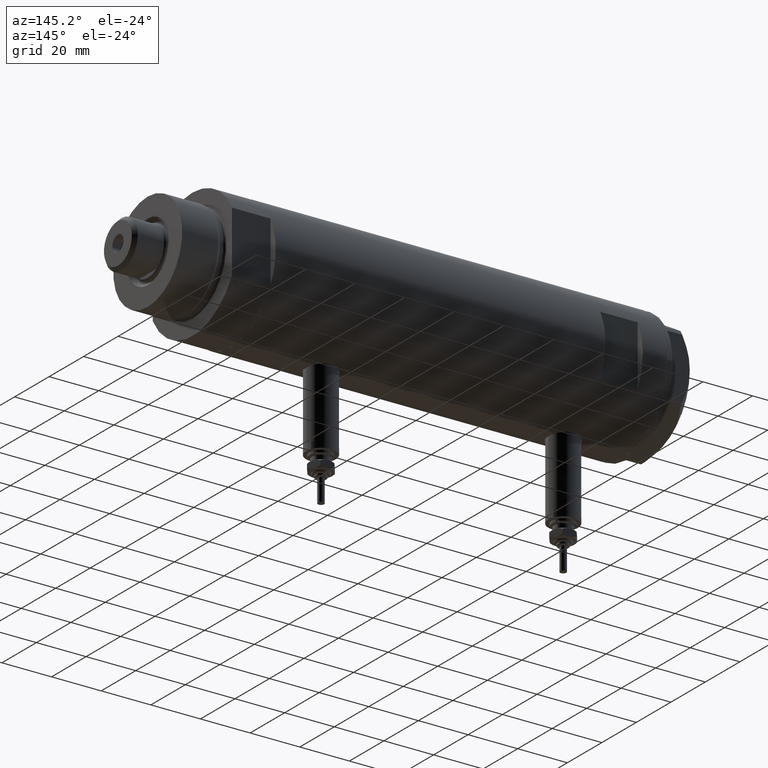
[diagram: clean part render]
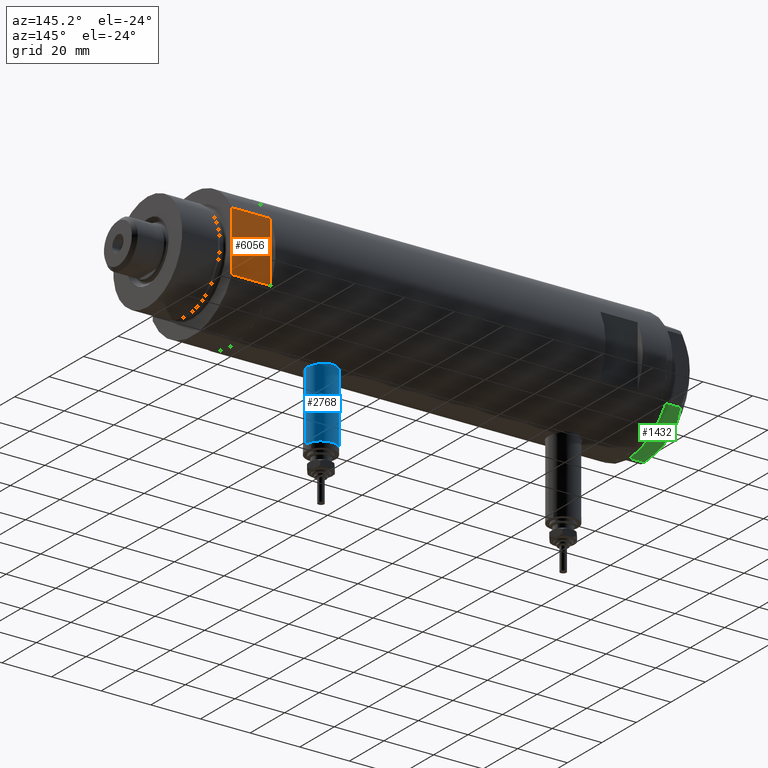
[diagram: same view with three faces highlighted in distinct colors, each labeled with its STEP entity id]
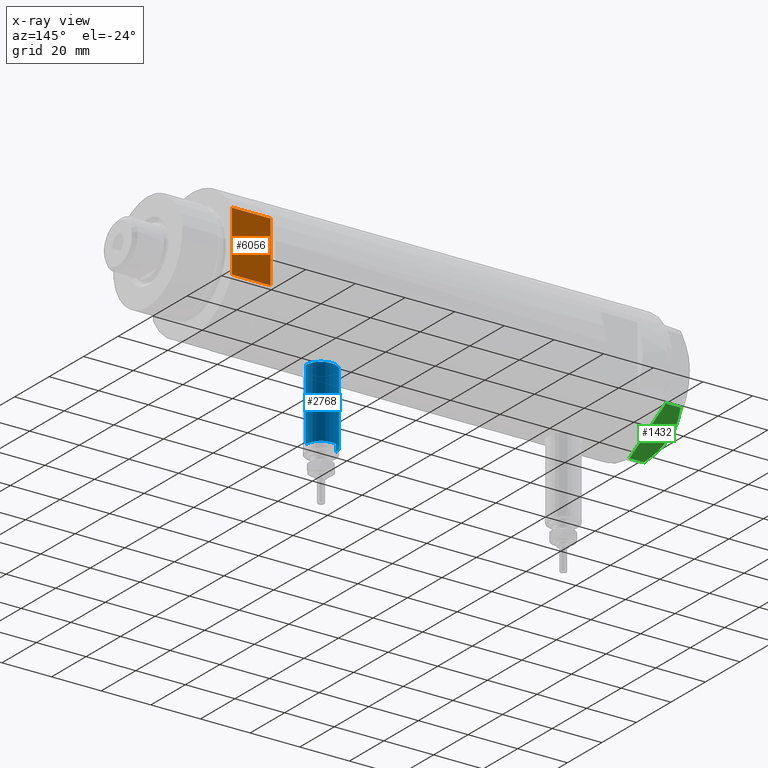
[diagram: x-ray of the same camera — body ghosted, the three highlighted faces saturated]
A machine part, auxiliary view with three faces highlighted in distinct colors.
The next image is the same camera in x-ray (body ghosted, the three faces saturated) — at least one of them is partly hidden behind the body in this view.
Their STEP definitions:

[orange] entity #6056 — the highlighted planar face has unit normal (0, -1, -0).
#189 = CARTESIAN_POINT ( 'NONE',  ( -12.12435565298215145, 23.00000000000000355, 15.50000000000000000 ) ) ;
#220 = DIRECTION ( 'NONE',  ( 1.000000000000000000, 0.000000000000000000, 0.000000000000000000 ) ) ;
#300 = EDGE_CURVE ( 'NONE', #2695, #940, #2361, .T. ) ;
#359 = ORIENTED_EDGE ( 'NONE', *, *, #1673, .T. ) ;
#790 = ORIENTED_EDGE ( 'NONE', *, *, #300, .F. ) ;
#940 = VERTEX_POINT ( 'NONE', #4628 ) ;
#971 = CARTESIAN_POINT ( 'NONE',  ( 12.12435565298215323, 23.00000000000000355, 0.000000000000000000 ) ) ;
#1000 = VERTEX_POINT ( 'NONE', #3163 ) ;
#1210 = CARTESIAN_POINT ( 'NONE',  ( 12.12435565298214080, 23.00000000000000355, 0.000000000000000000 ) ) ;
#1397 = VECTOR ( 'NONE', #5771, 1000.000000000000000 ) ;
#1417 = LINE ( 'NONE', #3372, #1397 ) ;
#1673 = EDGE_CURVE ( 'NONE', #3777, #940, #2648, .T. ) ;
#2184 = ORIENTED_EDGE ( 'NONE', *, *, #6288, .F. ) ;
#2203 = DIRECTION ( 'NONE',  ( 0.000000000000000000, -0.000000000000000000, -1.000000000000000000 ) ) ;
#2361 = LINE ( 'NONE', #971, #3501 ) ;
#2648 = LINE ( 'NONE', #189, #2899 ) ;
#2695 = VERTEX_POINT ( 'NONE', #1210 ) ;
#2860 = DIRECTION ( 'NONE',  ( -0.000000000000000000, -0.000000000000000000, 1.000000000000000000 ) ) ;
#2899 = VECTOR ( 'NONE', #220, 1000.000000000000000 ) ;
#3163 = CARTESIAN_POINT ( 'NONE',  ( -12.12435565298215145, 23.00000000000000355, 0.000000000000000000 ) ) ;
#3218 = FACE_OUTER_BOUND ( 'NONE', #3484, .T. ) ;
#3372 = CARTESIAN_POINT ( 'NONE',  ( -12.12435565298215145, 23.00000000000000355, 0.000000000000000000 ) ) ;
#3484 = EDGE_LOOP ( 'NONE', ( #359, #790, #2184, #5788 ) ) ;
#3501 = VECTOR ( 'NONE', #2860, 1000.000000000000000 ) ;
#3504 = CARTESIAN_POINT ( 'NONE',  ( -12.12435565298215145, 23.00000000000000355, 0.000000000000000000 ) ) ;
#3777 = VERTEX_POINT ( 'NONE', #5886 ) ;
#4290 = AXIS2_PLACEMENT_3D ( 'NONE', #5625, #4647, #2203 ) ;
#4577 = LINE ( 'NONE', #3504, #5808 ) ;
#4628 = CARTESIAN_POINT ( 'NONE',  ( 12.12435565298214790, 23.00000000000000355, 15.50000000000000000 ) ) ;
#4647 = DIRECTION ( 'NONE',  ( 0.000000000000000000, -1.000000000000000000, 0.000000000000000000 ) ) ;
#5028 = EDGE_CURVE ( 'NONE', #1000, #3777, #1417, .T. ) ;
#5625 = CARTESIAN_POINT ( 'NONE',  ( -12.12435565298215145, 23.00000000000000355, 0.000000000000000000 ) ) ;
#5771 = DIRECTION ( 'NONE',  ( -0.000000000000000000, -0.000000000000000000, 1.000000000000000000 ) ) ;
#5788 = ORIENTED_EDGE ( 'NONE', *, *, #5028, .T. ) ;
#5808 = VECTOR ( 'NONE', #5938, 1000.000000000000000 ) ;
#5886 = CARTESIAN_POINT ( 'NONE',  ( -12.12435565298214613, 23.00000000000000355, 15.50000000000000000 ) ) ;
#5938 = DIRECTION ( 'NONE',  ( 1.000000000000000000, 0.000000000000000000, 0.000000000000000000 ) ) ;
#6056 = ADVANCED_FACE ( 'NONE', ( #3218 ), #6165, .F. ) ;
#6165 = PLANE ( 'NONE',  #4290 ) ;
#6288 = EDGE_CURVE ( 'NONE', #1000, #2695, #4577, .T. ) ;

[blue] entity #2768 — the highlighted cylindrical surface (edge-blend (fillet) strip) has radius 6 mm, axis along (0, 0, 1).
#144 = CARTESIAN_POINT ( 'NONE',  ( -53.40000000000000568, 7.347880794884119736E-16, -36.64999999999999858 ) ) ;
#190 = ORIENTED_EDGE ( 'NONE', *, *, #4580, .F. ) ;
#282 = FACE_OUTER_BOUND ( 'NONE', #1907, .T. ) ;
#415 = LINE ( 'NONE', #2364, #5592 ) ;
#437 = VERTEX_POINT ( 'NONE', #2057 ) ;
#993 = VECTOR ( 'NONE', #2237, 1000.000000000000000 ) ;
#1212 = VERTEX_POINT ( 'NONE', #1768 ) ;
#1449 = DIRECTION ( 'NONE',  ( 1.000000000000000000, -0.000000000000000000, -0.000000000000000000 ) ) ;
#1576 = AXIS2_PLACEMENT_3D ( 'NONE', #4839, #1922, #2898 ) ;
#1768 = CARTESIAN_POINT ( 'NONE',  ( -24.80000000000000426, 7.347880794884119736E-16, -36.64999999999999858 ) ) ;
#1797 = EDGE_CURVE ( 'NONE', #6278, #5781, #2094, .T. ) ;
#1827 = CARTESIAN_POINT ( 'NONE',  ( -24.80000000000000426, 0.000000000000000000, -42.65000000000000568 ) ) ;
#1837 = EDGE_CURVE ( 'NONE', #1212, #437, #3521, .T. ) ;
#1907 = EDGE_LOOP ( 'NONE', ( #4855, #2100, #5239, #190 ) ) ;
#1922 = DIRECTION ( 'NONE',  ( -1.000000000000000000, 0.000000000000000000, 0.000000000000000000 ) ) ;
#2057 = CARTESIAN_POINT ( 'NONE',  ( -24.80000000000000426, 0.000000000000000000, -48.65000000000001279 ) ) ;
#2094 = CIRCLE ( 'NONE', #1576, 6.000000000000005329 ) ;
#2100 = ORIENTED_EDGE ( 'NONE', *, *, #6016, .T. ) ;
#2237 = DIRECTION ( 'NONE',  ( 1.000000000000000000, -0.000000000000000000, -0.000000000000000000 ) ) ;
#2301 = CARTESIAN_POINT ( 'NONE',  ( -53.40000000000000568, 7.347880794884122694E-16, -36.64999999999999858 ) ) ;
#2364 = CARTESIAN_POINT ( 'NONE',  ( -53.40000000000000568, 0.000000000000000000, -48.65000000000001279 ) ) ;
#2768 = ADVANCED_FACE ( 'NONE', ( #282 ), #5688, .T. ) ;
#2898 = DIRECTION ( 'NONE',  ( 0.000000000000000000, 0.000000000000000000, 1.000000000000000000 ) ) ;
#3007 = AXIS2_PLACEMENT_3D ( 'NONE', #3255, #5753, #3217 ) ;
#3185 = LINE ( 'NONE', #2301, #993 ) ;
#3217 = DIRECTION ( 'NONE',  ( 0.000000000000000000, 0.000000000000000000, -1.000000000000000000 ) ) ;
#3255 = CARTESIAN_POINT ( 'NONE',  ( -53.40000000000000568, 0.000000000000000000, -42.65000000000000568 ) ) ;
#3292 = DIRECTION ( 'NONE',  ( 0.000000000000000000, 0.000000000000000000, 1.000000000000000000 ) ) ;
#3521 = CIRCLE ( 'NONE', #5773, 6.000000000000005329 ) ;
#3786 = DIRECTION ( 'NONE',  ( -1.000000000000000000, 0.000000000000000000, 0.000000000000000000 ) ) ;
#4580 = EDGE_CURVE ( 'NONE', #5781, #437, #415, .T. ) ;
#4839 = CARTESIAN_POINT ( 'NONE',  ( -53.40000000000000568, 0.000000000000000000, -42.65000000000000568 ) ) ;
#4855 = ORIENTED_EDGE ( 'NONE', *, *, #1797, .F. ) ;
#5239 = ORIENTED_EDGE ( 'NONE', *, *, #1837, .T. ) ;
#5496 = CARTESIAN_POINT ( 'NONE',  ( -53.40000000000000568, 0.000000000000000000, -48.65000000000001279 ) ) ;
#5592 = VECTOR ( 'NONE', #1449, 1000.000000000000000 ) ;
#5688 = CYLINDRICAL_SURFACE ( 'NONE', #3007, 6.000000000000005329 ) ;
#5753 = DIRECTION ( 'NONE',  ( 1.000000000000000000, -0.000000000000000000, -0.000000000000000000 ) ) ;
#5773 = AXIS2_PLACEMENT_3D ( 'NONE', #1827, #3786, #3292 ) ;
#5781 = VERTEX_POINT ( 'NONE', #5496 ) ;
#6016 = EDGE_CURVE ( 'NONE', #6278, #1212, #3185, .T. ) ;
#6278 = VERTEX_POINT ( 'NONE', #144 ) ;

[green] entity #1432 — the highlighted planar face has unit normal (0, -0.5, 0.866).
#23 = EDGE_CURVE ( 'NONE', #3805, #6315, #4177, .T. ) ;
#39 = VECTOR ( 'NONE', #5797, 1000.000000000000000 ) ;
#89 = CARTESIAN_POINT ( 'NONE',  ( 20.37350567916420019, 14.79546339452108050, 6.877782426143415506 ) ) ;
#120 = DIRECTION ( 'NONE',  ( -0.8660254037844415942, 0.4999999999999949485, 0.000000000000000000 ) ) ;
#313 = ORIENTED_EDGE ( 'NONE', *, *, #23, .T. ) ;
#361 = CARTESIAN_POINT ( 'NONE',  ( 22.99999999999981171, 13.27905619136164184, 0.000000000000000000 ) ) ;
#562 = CARTESIAN_POINT ( 'NONE',  ( 0.9699484522385767304, 25.99811238272274849, 5.983800287807627960 ) ) ;
#622 = ORIENTED_EDGE ( 'NONE', *, *, #1511, .T. ) ;
#625 = CARTESIAN_POINT ( 'NONE',  ( 5.671686373602799591, 23.28356272816407824, 8.040681765829278405 ) ) ;
#949 = CARTESIAN_POINT ( 'NONE',  ( 15.16323225988329959, 17.80361615569442790, 8.637313967156861949 ) ) ;
#953 = CARTESIAN_POINT ( 'NONE',  ( 0.9699484522385816154, 25.99811238272274494, 9.000000000000000000 ) ) ;
#1022 = VERTEX_POINT ( 'NONE', #4182 ) ;
#1266 = LINE ( 'NONE', #2735, #1306 ) ;
#1306 = VECTOR ( 'NONE', #2165, 1000.000000000000000 ) ;
#1432 = ADVANCED_FACE ( 'NONE', ( #2817 ), #2403, .F. ) ;
#1511 = EDGE_CURVE ( 'NONE', #6315, #1022, #3855, .T. ) ;
#1525 = CARTESIAN_POINT ( 'NONE',  ( 16.05322244309623869, 17.28978008384030929, 8.426899937603700153 ) ) ;
#1540 = ORIENTED_EDGE ( 'NONE', *, *, #2525, .F. ) ;
#1663 = VERTEX_POINT ( 'NONE', #5182 ) ;
#1977 = CARTESIAN_POINT ( 'NONE',  ( 18.67981377008996446, 15.77331687414937278, 7.629374868826049649 ) ) ;
#2040 = LINE ( 'NONE', #2993, #3970 ) ;
#2162 = CARTESIAN_POINT ( 'NONE',  ( 22.03005154776138852, 13.83905619136154819, 5.983800287807532037 ) ) ;
#2165 = DIRECTION ( 'NONE',  ( 0.000000000000000000, 0.000000000000000000, -1.000000000000000000 ) ) ;
#2207 = DIRECTION ( 'NONE',  ( -0.8660254037844415942, 0.4999999999999949485, 0.000000000000000000 ) ) ;
#2250 = B_SPLINE_CURVE_WITH_KNOTS ( 'NONE', 3,
 ( #2991, #89, #1977, #1525, #949, #5460, #2870, #3448, #4951, #3414 ),
 .UNSPECIFIED., .F., .F.,
 ( 4, 2, 2, 2, 4 ),
 ( 0.001228959670438493522, 0.007497079744270714746, 0.01063113978118682655, 0.01219816979964488159, 0.01376519981810293489 ),
 .UNSPECIFIED. ) ;
#2403 = PLANE ( 'NONE',  #5453 ) ;
#2496 = CARTESIAN_POINT ( 'NONE',  ( 0.9999999999999297229, 25.98076211353316722, 0.000000000000000000 ) ) ;
#2525 = EDGE_CURVE ( 'NONE', #3078, #1663, #2250, .T. ) ;
#2574 = CARTESIAN_POINT ( 'NONE',  ( 5.229981517798067081, 23.53858114556529912, 7.892128867758392730 ) ) ;
#2606 = CARTESIAN_POINT ( 'NONE',  ( 9.678244919010086988, 20.97037507344920826, 9.000000000000001776 ) ) ;
#2672 = CARTESIAN_POINT ( 'NONE',  ( 22.03005154776124286, 13.83905619136163168, 0.000000000000000000 ) ) ;
#2735 = CARTESIAN_POINT ( 'NONE',  ( 22.03005154776124286, 13.83905619136163168, 9.000000000000000000 ) ) ;
#2786 = VECTOR ( 'NONE', #2207, 999.9999999999998863 ) ;
#2817 = FACE_OUTER_BOUND ( 'NONE', #5800, .T. ) ;
#2870 = CARTESIAN_POINT ( 'NONE',  ( 13.34348161667005073, 18.85424967941157703, 8.907842277728345692 ) ) ;
#2985 = CARTESIAN_POINT ( 'NONE',  ( 11.49999999999990408, 19.91858428704219364, 9.000000000000000000 ) ) ;
#2991 = CARTESIAN_POINT ( 'NONE',  ( 22.03005154776138852, 13.83905619136154819, 5.983800287807532037 ) ) ;
#2993 = CARTESIAN_POINT ( 'NONE',  ( 22.99999999999981171, 13.27905619136164184, 0.000000000000000000 ) ) ;
#3017 = CARTESIAN_POINT ( 'NONE',  ( 0.9699484522385816154, 25.99811238272274494, 0.000000000000000000 ) ) ;
#3052 = CARTESIAN_POINT ( 'NONE',  ( 3.925137811030050994, 24.29193301091819635, 7.397272853991373687 ) ) ;
#3078 = VERTEX_POINT ( 'NONE', #2162 ) ;
#3414 = CARTESIAN_POINT ( 'NONE',  ( 11.49999999999990408, 19.91858428704219364, 9.000000000000000000 ) ) ;
#3448 = CARTESIAN_POINT ( 'NONE',  ( 12.41906678023027588, 19.38796083407295967, 8.981686407609410949 ) ) ;
#3563 = ORIENTED_EDGE ( 'NONE', *, *, #5595, .T. ) ;
#3713 = B_SPLINE_CURVE_WITH_KNOTS ( 'NONE', 3,
 ( #2985, #2606, #3969, #625, #2574, #5967, #3052, #4546, #4947, #562 ),
 .UNSPECIFIED., .F., .F.,
 ( 4, 2, 2, 2, 4 ),
 ( 0.01376519981810293489, 0.01998941321701561136, 0.02154546656674377961, 0.02310151991647194786, 0.02621362661592828783 ),
 .UNSPECIFIED. ) ;
#3805 = VERTEX_POINT ( 'NONE', #2496 ) ;
#3855 = LINE ( 'NONE', #953, #39 ) ;
#3969 = CARTESIAN_POINT ( 'NONE',  ( 7.884645426989626671, 22.00591022298560517, 8.707651728476925257 ) ) ;
#3970 = VECTOR ( 'NONE', #120, 999.9999999999998863 ) ;
#4177 = LINE ( 'NONE', #4269, #2786 ) ;
#4182 = CARTESIAN_POINT ( 'NONE',  ( 0.9699484522385767304, 25.99811238272274849, 5.983800287807627960 ) ) ;
#4269 = CARTESIAN_POINT ( 'NONE',  ( 22.99999999999981171, 13.27905619136164184, 0.000000000000000000 ) ) ;
#4282 = VECTOR ( 'NONE', #4784, 999.9999999999998863 ) ;
#4399 = DIRECTION ( 'NONE',  ( 0.8660254037844415942, -0.4999999999999949485, 0.000000000000000000 ) ) ;
#4402 = VERTEX_POINT ( 'NONE', #5521 ) ;
#4427 = EDGE_CURVE ( 'NONE', #3078, #6059, #1266, .T. ) ;
#4546 = CARTESIAN_POINT ( 'NONE',  ( 2.640413878806739945, 25.03366871902167290, 6.844201024438365089 ) ) ;
#4784 = DIRECTION ( 'NONE',  ( -0.8660254037844415942, 0.4999999999999949485, 0.000000000000000000 ) ) ;
#4787 = DIRECTION ( 'NONE',  ( -0.4999999999999949485, -0.8660254037844415942, 0.000000000000000000 ) ) ;
#4827 = ORIENTED_EDGE ( 'NONE', *, *, #4427, .T. ) ;
#4947 = CARTESIAN_POINT ( 'NONE',  ( 1.799196345396824492, 25.51934588838292228, 6.431317509509382191 ) ) ;
#4951 = CARTESIAN_POINT ( 'NONE',  ( 11.95865151389051917, 19.65378171203322566, 9.000000000000005329 ) ) ;
#5182 = CARTESIAN_POINT ( 'NONE',  ( 11.49999999999990408, 19.91858428704219364, 9.000000000000000000 ) ) ;
#5249 = LINE ( 'NONE', #361, #4282 ) ;
#5316 = CARTESIAN_POINT ( 'NONE',  ( 22.99999999999981171, 13.27905619136164184, 9.000000000000000000 ) ) ;
#5453 = AXIS2_PLACEMENT_3D ( 'NONE', #5316, #4787, #4399 ) ;
#5460 = CARTESIAN_POINT ( 'NONE',  ( 13.80210138309697498, 18.58946543380931260, 8.852712638955710034 ) ) ;
#5521 = CARTESIAN_POINT ( 'NONE',  ( 21.99999999999987210, 13.85640646055121827, 0.000000000000000000 ) ) ;
#5595 = EDGE_CURVE ( 'NONE', #6059, #4402, #5249, .T. ) ;
#5793 = EDGE_CURVE ( 'NONE', #4402, #3805, #2040, .T. ) ;
#5797 = DIRECTION ( 'NONE',  ( 0.000000000000000000, 0.000000000000000000, 1.000000000000000000 ) ) ;
#5800 = EDGE_LOOP ( 'NONE', ( #1540, #4827, #3563, #6096, #313, #622, #6124 ) ) ;
#5967 = CARTESIAN_POINT ( 'NONE',  ( 4.357207709416038632, 24.04247733877631532, 7.570552255229681116 ) ) ;
#6059 = VERTEX_POINT ( 'NONE', #2672 ) ;
#6096 = ORIENTED_EDGE ( 'NONE', *, *, #5793, .T. ) ;
#6124 = ORIENTED_EDGE ( 'NONE', *, *, #6264, .F. ) ;
#6264 = EDGE_CURVE ( 'NONE', #1663, #1022, #3713, .T. ) ;
#6315 = VERTEX_POINT ( 'NONE', #3017 ) ;